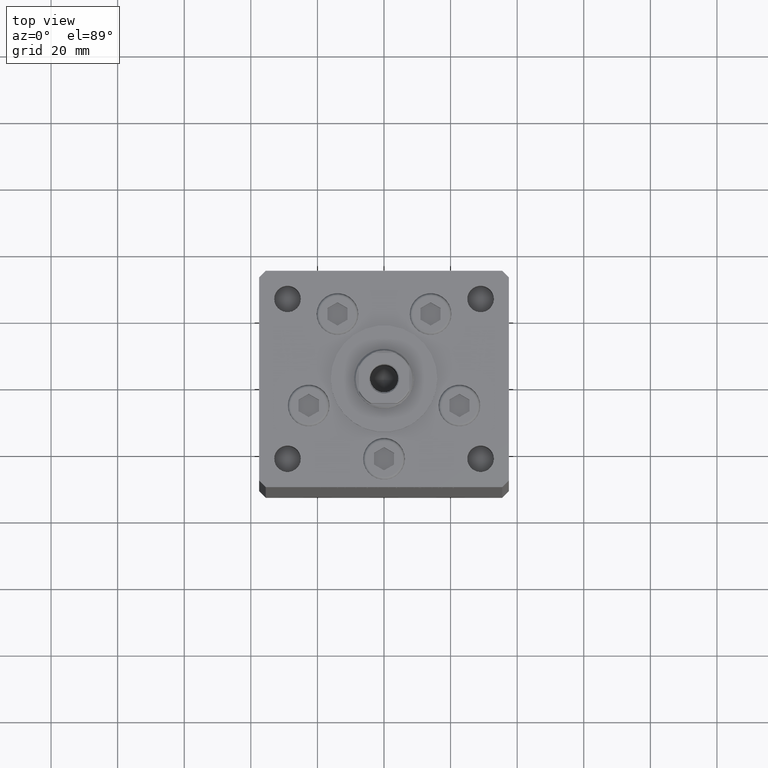
[diagram: clean part render]
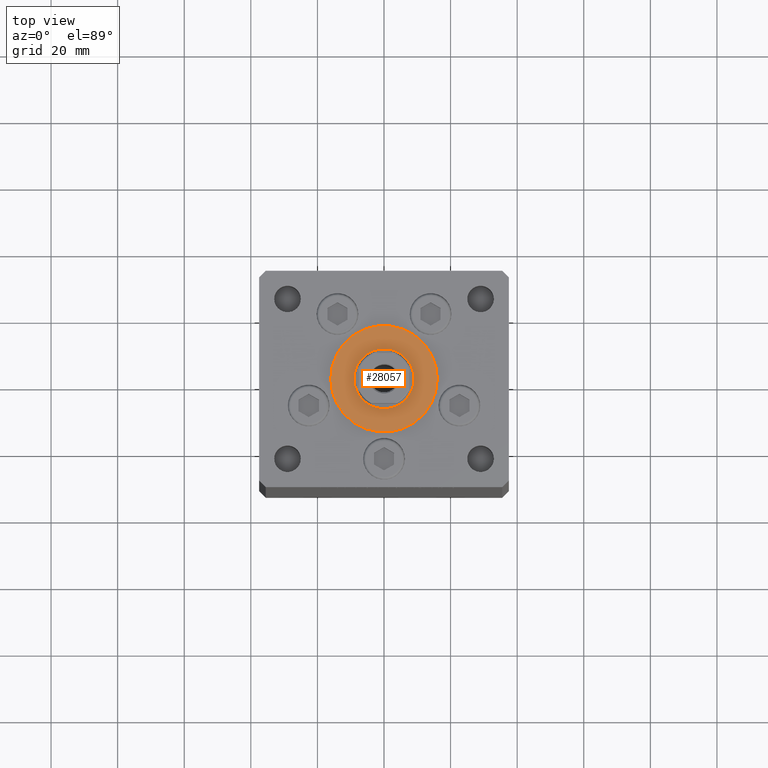
[diagram: same view with one face highlighted and labeled with its STEP entity id]
A machine part, top view. The second image highlights one B-rep face of the part: STEP entity #28057.
In plain terms, the highlighted planar face has unit normal (0, 0, 1).
Its self-contained STEP definition (entity closure, byte-faithful):
#3421 = AXIS2_PLACEMENT_3D ( 'NONE', #24120, #7781, #15696 ) ;
#4202 = EDGE_CURVE ( 'NONE', #47725, #48737, #35410, .T. ) ;
#7781 = DIRECTION ( 'NONE',  ( 0.000000000000000000, 0.000000000000000000, 1.000000000000000000 ) ) ;
#8622 = ORIENTED_EDGE ( 'NONE', *, *, #17288, .T. ) ;
#11767 = CARTESIAN_POINT ( 'NONE',  ( 0.000000000000000000, -6.938893903907228378E-15, 2.000000000000000000 ) ) ;
#13764 = CARTESIAN_POINT ( 'NONE',  ( 0.000000000000000000, -6.938893903907228378E-15, 2.000000000000000000 ) ) ;
#15192 = CARTESIAN_POINT ( 'NONE',  ( -16.00000000000000355, -6.938893903907228378E-15, 2.000000000000000000 ) ) ;
#15696 = DIRECTION ( 'NONE',  ( 1.000000000000000000, 0.000000000000000000, 0.000000000000000000 ) ) ;
#15733 = FACE_OUTER_BOUND ( 'NONE', #42696, .T. ) ;
#17222 = DIRECTION ( 'NONE',  ( 0.000000000000000000, 0.000000000000000000, 1.000000000000000000 ) ) ;
#17288 = EDGE_CURVE ( 'NONE', #48737, #47725, #36880, .T. ) ;
#17724 = AXIS2_PLACEMENT_3D ( 'NONE', #38587, #30686, #38848 ) ;
#24120 = CARTESIAN_POINT ( 'NONE',  ( 0.000000000000000000, -6.938893903907228378E-15, 2.000000000000000000 ) ) ;
#25781 = AXIS2_PLACEMENT_3D ( 'NONE', #13764, #17222, #45170 ) ;
#25894 = EDGE_CURVE ( 'NONE', #26992, #46816, #36145, .T. ) ;
#26992 = VERTEX_POINT ( 'NONE', #34382 ) ;
#28057 = ADVANCED_FACE ( 'NONE', ( #31303, #15733 ), #42901, .T. ) ;
#28873 = EDGE_LOOP ( 'NONE', ( #41199, #34939 ) ) ;
#30686 = DIRECTION ( 'NONE',  ( 0.000000000000000000, 0.000000000000000000, 1.000000000000000000 ) ) ;
#30779 = DIRECTION ( 'NONE',  ( 0.000000000000000000, 0.000000000000000000, 1.000000000000000000 ) ) ;
#31303 = FACE_BOUND ( 'NONE', #28873, .T. ) ;
#33309 = ORIENTED_EDGE ( 'NONE', *, *, #4202, .T. ) ;
#34382 = CARTESIAN_POINT ( 'NONE',  ( 9.000000000000000000, -6.938893903907228378E-15, 2.000000000000000000 ) ) ;
#34939 = ORIENTED_EDGE ( 'NONE', *, *, #42902, .F. ) ;
#35410 = CIRCLE ( 'NONE', #17724, 16.00000000000000355 ) ;
#36145 = CIRCLE ( 'NONE', #47897, 9.000000000000000000 ) ;
#36880 = CIRCLE ( 'NONE', #25781, 16.00000000000000355 ) ;
#38587 = CARTESIAN_POINT ( 'NONE',  ( 0.000000000000000000, -6.938893903907228378E-15, 2.000000000000000000 ) ) ;
#38730 = AXIS2_PLACEMENT_3D ( 'NONE', #11767, #30779, #46860 ) ;
#38848 = DIRECTION ( 'NONE',  ( 1.000000000000000000, 0.000000000000000000, 0.000000000000000000 ) ) ;
#38902 = CARTESIAN_POINT ( 'NONE',  ( 0.000000000000000000, -6.938893903907228378E-15, 2.000000000000000000 ) ) ;
#39937 = DIRECTION ( 'NONE',  ( 1.000000000000000000, 0.000000000000000000, 0.000000000000000000 ) ) ;
#41199 = ORIENTED_EDGE ( 'NONE', *, *, #25894, .F. ) ;
#42696 = EDGE_LOOP ( 'NONE', ( #8622, #33309 ) ) ;
#42901 = PLANE ( 'NONE',  #38730 ) ;
#42902 = EDGE_CURVE ( 'NONE', #46816, #26992, #49760, .T. ) ;
#43911 = DIRECTION ( 'NONE',  ( 0.000000000000000000, 0.000000000000000000, 1.000000000000000000 ) ) ;
#45170 = DIRECTION ( 'NONE',  ( 1.000000000000000000, 0.000000000000000000, 0.000000000000000000 ) ) ;
#45241 = CARTESIAN_POINT ( 'NONE',  ( 16.00000000000000355, -4.979459025271462852E-15, 2.000000000000000000 ) ) ;
#46816 = VERTEX_POINT ( 'NONE', #47078 ) ;
#46860 = DIRECTION ( 'NONE',  ( 1.000000000000000000, 0.000000000000000000, -0.000000000000000000 ) ) ;
#47078 = CARTESIAN_POINT ( 'NONE',  ( -9.000000000000000000, -5.836711784674610467E-15, 2.000000000000000000 ) ) ;
#47725 = VERTEX_POINT ( 'NONE', #45241 ) ;
#47897 = AXIS2_PLACEMENT_3D ( 'NONE', #38902, #43911, #39937 ) ;
#48737 = VERTEX_POINT ( 'NONE', #15192 ) ;
#49760 = CIRCLE ( 'NONE', #3421, 9.000000000000000000 ) ;